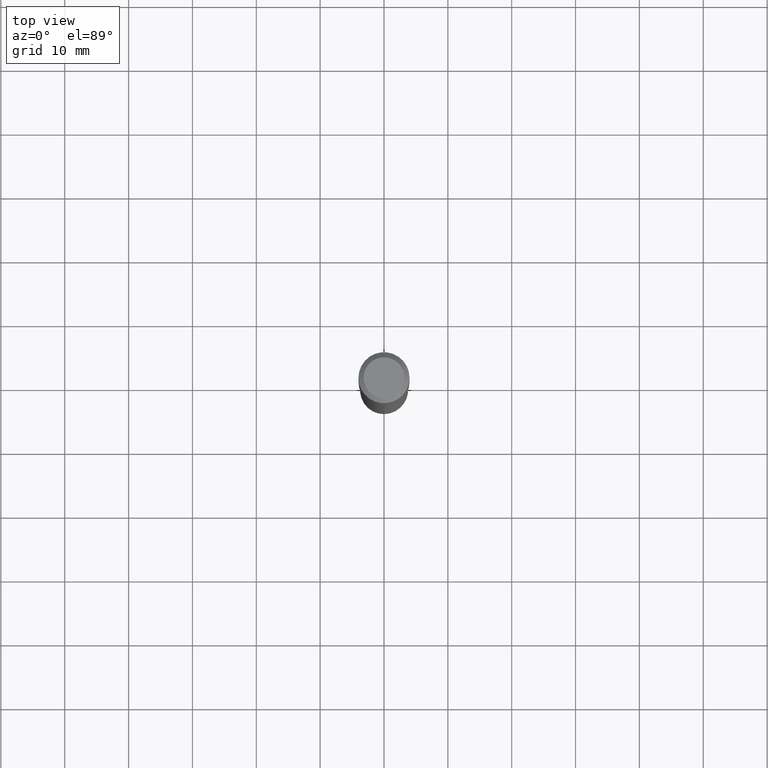
[diagram: clean part render]
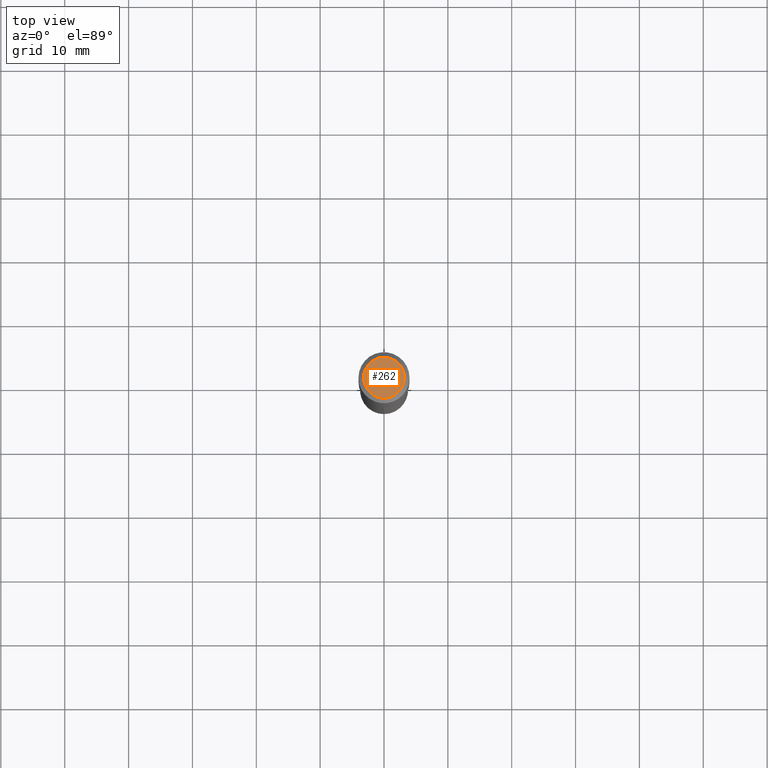
[diagram: same view with one face highlighted and labeled with its STEP entity id]
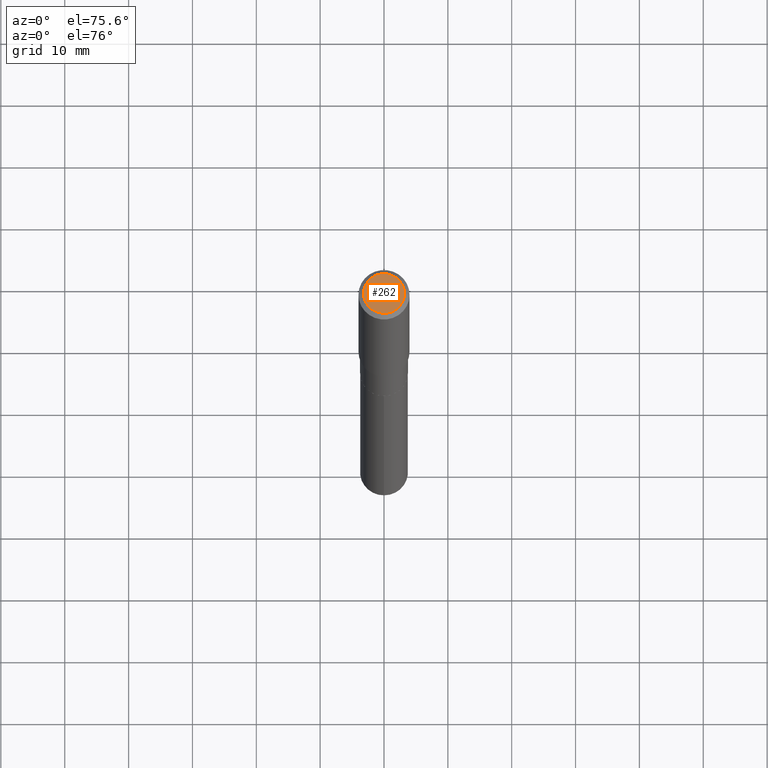
[diagram: same view with one face highlighted and labeled with its STEP entity id]
A machine part, top view. The second image highlights one B-rep face of the part: STEP entity #262.
A second angle (auxiliary view) of the same face is appended — the face is thin or edge-on in the first view.
In plain terms, the highlighted planar face has unit normal (0, -0, -1).
Its self-contained STEP definition (entity closure, byte-faithful):
#43 = ORIENTED_EDGE ( 'NONE', *, *, #349, .T. ) ;
#57 = DIRECTION ( 'NONE',  ( -1.000000000000000000, 6.982962677686265922E-15, -4.876176775795935793E-29 ) ) ;
#65 = PLANE ( 'NONE',  #479 ) ;
#97 = EDGE_LOOP ( 'NONE', ( #230, #43 ) ) ;
#103 = FACE_OUTER_BOUND ( 'NONE', #97, .T. ) ;
#106 = CARTESIAN_POINT ( 'NONE',  ( 0.1260000000000000009, -1.027466422270894443E-15, 3.860086710919128072E-18 ) ) ;
#151 = DIRECTION ( 'NONE',  ( 1.000000000000000000, -6.982962677686265922E-15, 4.876281427513067258E-29 ) ) ;
#206 = CIRCLE ( 'NONE', #225, 0.1260000000000000009 ) ;
#225 = AXIS2_PLACEMENT_3D ( 'NONE', #324, #274, #151 ) ;
#230 = ORIENTED_EDGE ( 'NONE', *, *, #296, .T. ) ;
#256 = CARTESIAN_POINT ( 'NONE',  ( -9.439721640706201686E-47, 1.347742071746726764E-32, 3.860086710912459732E-18 ) ) ;
#262 = ADVANCED_FACE ( 'NONE', ( #103 ), #65, .F. ) ;
#274 = DIRECTION ( 'NONE',  ( -2.445468806185136597E-29, 3.491481338843145583E-15, 1.000000000000000000 ) ) ;
#296 = EDGE_CURVE ( 'NONE', #424, #456, #206, .T. ) ;
#302 = CARTESIAN_POINT ( 'NONE',  ( -0.1260000000000000009, 9.348441284752484904E-16, 3.860086710906114178E-18 ) ) ;
#312 = DIRECTION ( 'NONE',  ( 2.438088387897960049E-29, -3.491481338843145188E-15, -1.000000000000000000 ) ) ;
#324 = CARTESIAN_POINT ( 'NONE',  ( -9.439721640706201686E-47, 1.347742071746726764E-32, 3.860086710912459732E-18 ) ) ;
#333 = AXIS2_PLACEMENT_3D ( 'NONE', #256, #410, #477 ) ;
#346 = CIRCLE ( 'NONE', #333, 0.1260000000000000009 ) ;
#349 = EDGE_CURVE ( 'NONE', #456, #424, #346, .T. ) ;
#395 = CARTESIAN_POINT ( 'NONE',  ( -4.719860820353100843E-47, 6.738710358733633822E-33, 1.930043355456229866E-18 ) ) ;
#410 = DIRECTION ( 'NONE',  ( -2.445468806185136597E-29, 3.491481338843145583E-15, 1.000000000000000000 ) ) ;
#424 = VERTEX_POINT ( 'NONE', #302 ) ;
#456 = VERTEX_POINT ( 'NONE', #106 ) ;
#477 = DIRECTION ( 'NONE',  ( 1.000000000000000000, -6.982962677686265922E-15, 4.876281427513067258E-29 ) ) ;
#479 = AXIS2_PLACEMENT_3D ( 'NONE', #395, #312, #57 ) ;